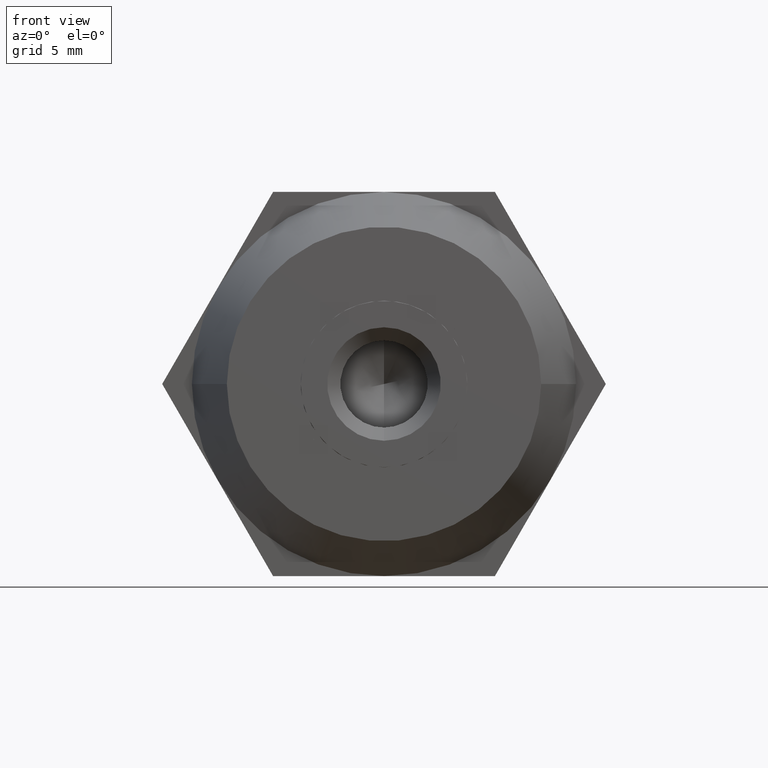
[diagram: clean part render]
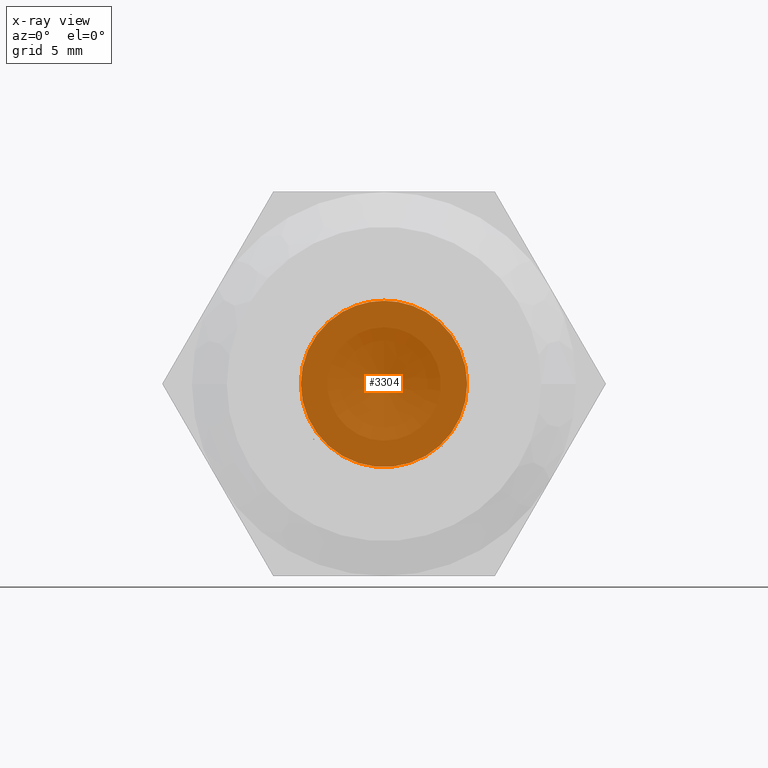
[diagram: x-ray — body ghosted, one internal face saturated and labeled with its STEP entity id]
A machine part, front view, then the same camera in x-ray: the body is ghosted and one INTERNAL B-rep face — a face not visible from any outside direction — is saturated and labeled: STEP entity #3304.
In plain terms, the highlighted planar face has unit normal (0, 1, 0).
Its self-contained STEP definition (entity closure, byte-faithful):
#38 = ORIENTED_EDGE ( 'NONE', *, *, #2856, .F. ) ;
#160 = CARTESIAN_POINT ( 'NONE',  ( 0.0000000000000000000, 4.509999999999999800, 0.0000000000000000000 ) ) ;
#185 = VERTEX_POINT ( 'NONE', #753 ) ;
#261 = AXIS2_PLACEMENT_3D ( 'NONE', #2231, #961, #2502 ) ;
#288 = CARTESIAN_POINT ( 'NONE',  ( 0.0000000000000000000, 4.509999999999999800, 0.0000000000000000000 ) ) ;
#438 = DIRECTION ( 'NONE',  ( -0.0000000000000000000, -1.000000000000000000, -0.0000000000000000000 ) ) ;
#492 = ORIENTED_EDGE ( 'NONE', *, *, #1113, .F. ) ;
#548 = ORIENTED_EDGE ( 'NONE', *, *, #3688, .F. ) ;
#631 = CARTESIAN_POINT ( 'NONE',  ( 0.0000000000000000000, 4.509999999999999800, 0.0000000000000000000 ) ) ;
#753 = CARTESIAN_POINT ( 'NONE',  ( 2.381249999999965000, 4.509999999999390500, 4.124445985523424300 ) ) ;
#821 = CIRCLE ( 'NONE', #2024, 4.762500000000000200 ) ;
#828 = AXIS2_PLACEMENT_3D ( 'NONE', #3154, #3750, #2547 ) ;
#853 = FACE_OUTER_BOUND ( 'NONE', #3204, .T. ) ;
#905 = CARTESIAN_POINT ( 'NONE',  ( 0.0000000000000000000, 4.509999999999999800, 0.0000000000000000000 ) ) ;
#939 = DIRECTION ( 'NONE',  ( 0.0000000000000000000, 0.0000000000000000000, 1.000000000000000000 ) ) ;
#961 = DIRECTION ( 'NONE',  ( -0.0000000000000000000, -1.000000000000000000, -0.0000000000000000000 ) ) ;
#1008 = ORIENTED_EDGE ( 'NONE', *, *, #2384, .F. ) ;
#1094 = CIRCLE ( 'NONE', #3302, 4.762500000000000200 ) ;
#1113 = EDGE_CURVE ( 'NONE', #3814, #3473, #821, .T. ) ;
#1187 = VERTEX_POINT ( 'NONE', #1612 ) ;
#1208 = ORIENTED_EDGE ( 'NONE', *, *, #3848, .F. ) ;
#1229 = CIRCLE ( 'NONE', #1256, 4.762500000000000200 ) ;
#1256 = AXIS2_PLACEMENT_3D ( 'NONE', #3454, #438, #2842 ) ;
#1269 = VERTEX_POINT ( 'NONE', #3815 ) ;
#1358 = CARTESIAN_POINT ( 'NONE',  ( 4.762500000000000200, 4.509999999999999800, 0.0000000000000000000 ) ) ;
#1368 = DIRECTION ( 'NONE',  ( 0.0000000000000000000, 1.000000000000000000, 0.0000000000000000000 ) ) ;
#1448 = ORIENTED_EDGE ( 'NONE', *, *, #2615, .F. ) ;
#1493 = CARTESIAN_POINT ( 'NONE',  ( 0.0000000000000000000, 4.509999999999999800, 0.0000000000000000000 ) ) ;
#1612 = CARTESIAN_POINT ( 'NONE',  ( -4.762500000000000200, 4.509999999999999800, -6.938893903907230000E-015 ) ) ;
#1655 = AXIS2_PLACEMENT_3D ( 'NONE', #1493, #3576, #1730 ) ;
#1730 = DIRECTION ( 'NONE',  ( 0.0000000000000000000, 0.0000000000000000000, 1.000000000000000000 ) ) ;
#1957 = PLANE ( 'NONE',  #2710 ) ;
#1965 = CARTESIAN_POINT ( 'NONE',  ( -2.381250000000000100, 4.509999999999999800, 4.124445985523419900 ) ) ;
#1985 = DIRECTION ( 'NONE',  ( 0.0000000000000000000, 0.0000000000000000000, 1.000000000000000000 ) ) ;
#2019 = CARTESIAN_POINT ( 'NONE',  ( -2.381250000000000100, 4.509999999999430500, -4.124445985523444800 ) ) ;
#2024 = AXIS2_PLACEMENT_3D ( 'NONE', #631, #2150, #939 ) ;
#2125 = DIRECTION ( 'NONE',  ( 3.552713678800500900E-015, 0.0000000000000000000, 1.000000000000000000 ) ) ;
#2150 = DIRECTION ( 'NONE',  ( -0.0000000000000000000, -1.000000000000000000, -0.0000000000000000000 ) ) ;
#2214 = ORIENTED_EDGE ( 'NONE', *, *, #2677, .F. ) ;
#2231 = CARTESIAN_POINT ( 'NONE',  ( 0.0000000000000000000, 4.509999999999999800, 0.0000000000000000000 ) ) ;
#2313 = VERTEX_POINT ( 'NONE', #1358 ) ;
#2382 = CIRCLE ( 'NONE', #828, 4.762500000000000200 ) ;
#2384 = EDGE_CURVE ( 'NONE', #2313, #185, #1229, .T. ) ;
#2425 = AXIS2_PLACEMENT_3D ( 'NONE', #288, #3299, #3604 ) ;
#2502 = DIRECTION ( 'NONE',  ( 0.0000000000000000000, 0.0000000000000000000, 1.000000000000000000 ) ) ;
#2547 = DIRECTION ( 'NONE',  ( 1.776356839400250500E-015, 0.0000000000000000000, 1.000000000000000000 ) ) ;
#2615 = EDGE_CURVE ( 'NONE', #3473, #1187, #3612, .T. ) ;
#2677 = EDGE_CURVE ( 'NONE', #185, #3814, #1094, .T. ) ;
#2710 = AXIS2_PLACEMENT_3D ( 'NONE', #160, #1368, #1985 ) ;
#2721 = CARTESIAN_POINT ( 'NONE',  ( 0.0000000000000000000, 4.509999999999999800, 4.762500000000000200 ) ) ;
#2842 = DIRECTION ( 'NONE',  ( -1.776356839400250500E-015, 0.0000000000000000000, 1.000000000000000000 ) ) ;
#2856 = EDGE_CURVE ( 'NONE', #3463, #1269, #2382, .T. ) ;
#2905 = CIRCLE ( 'NONE', #261, 4.762500000000000200 ) ;
#3041 = DIRECTION ( 'NONE',  ( -0.0000000000000000000, -1.000000000000000000, -0.0000000000000000000 ) ) ;
#3093 = CIRCLE ( 'NONE', #2425, 4.762500000000000200 ) ;
#3154 = CARTESIAN_POINT ( 'NONE',  ( 0.0000000000000000000, 4.509999999999999800, 0.0000000000000000000 ) ) ;
#3204 = EDGE_LOOP ( 'NONE', ( #2214, #1008, #548, #38, #1208, #1448, #492 ) ) ;
#3299 = DIRECTION ( 'NONE',  ( -0.0000000000000000000, -1.000000000000000000, -0.0000000000000000000 ) ) ;
#3302 = AXIS2_PLACEMENT_3D ( 'NONE', #905, #3041, #2125 ) ;
#3304 = ADVANCED_FACE ( 'NONE', ( #853 ), #1957, .T. ) ;
#3454 = CARTESIAN_POINT ( 'NONE',  ( 0.0000000000000000000, 4.509999999999999800, 0.0000000000000000000 ) ) ;
#3463 = VERTEX_POINT ( 'NONE', #2019 ) ;
#3473 = VERTEX_POINT ( 'NONE', #1965 ) ;
#3576 = DIRECTION ( 'NONE',  ( -0.0000000000000000000, -1.000000000000000000, -0.0000000000000000000 ) ) ;
#3604 = DIRECTION ( 'NONE',  ( 0.0000000000000000000, 0.0000000000000000000, 1.000000000000000000 ) ) ;
#3612 = CIRCLE ( 'NONE', #1655, 4.762500000000000200 ) ;
#3688 = EDGE_CURVE ( 'NONE', #1269, #2313, #2905, .T. ) ;
#3750 = DIRECTION ( 'NONE',  ( -0.0000000000000000000, -1.000000000000000000, -0.0000000000000000000 ) ) ;
#3814 = VERTEX_POINT ( 'NONE', #2721 ) ;
#3815 = CARTESIAN_POINT ( 'NONE',  ( 2.381250000000065400, 4.509999999999430500, -4.124445985523409200 ) ) ;
#3848 = EDGE_CURVE ( 'NONE', #1187, #3463, #3093, .T. ) ;